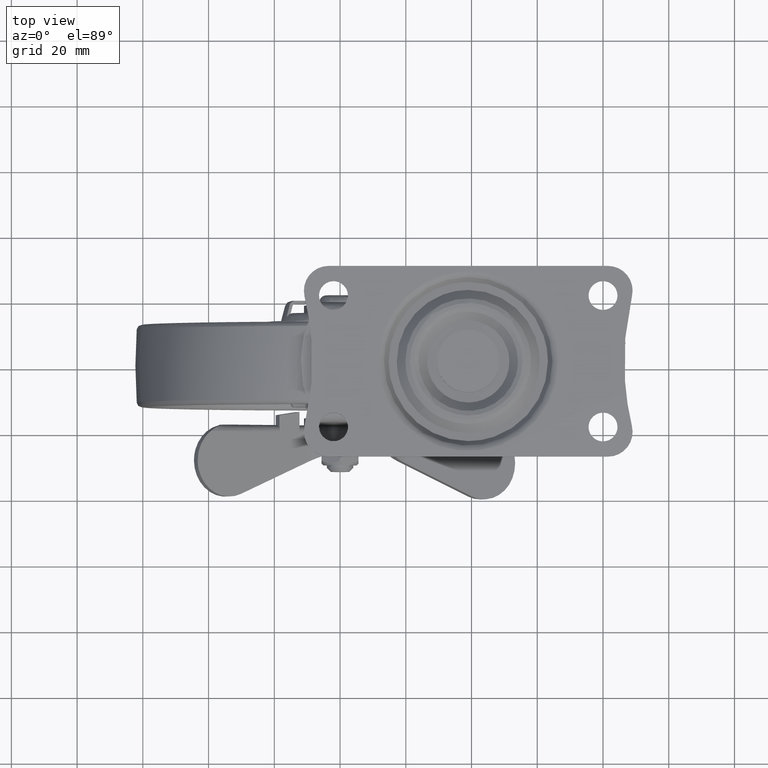
[diagram: clean part render]
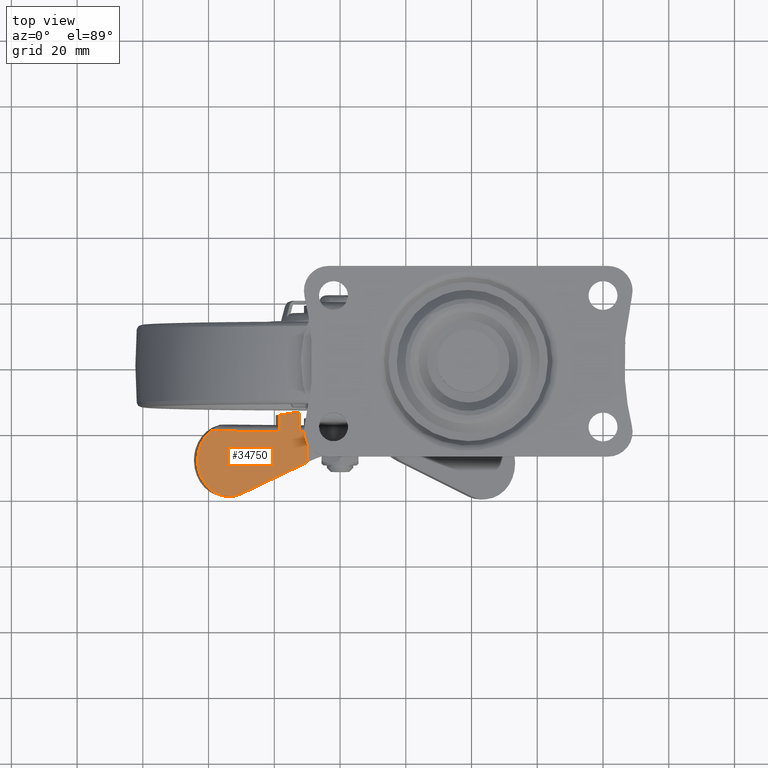
[diagram: same view with one face highlighted and labeled with its STEP entity id]
A machine part, top view. The second image highlights one B-rep face of the part: STEP entity #34750.
In plain terms, the highlighted face is a freeform B-spline surface patch.
Its self-contained STEP definition (entity closure, byte-faithful):
#32930=CARTESIAN_POINT('',(-17.093880880328150,-20.300000000000001,9.949978420978640));
#32931=VERTEX_POINT('',#32930);
#32977=CARTESIAN_POINT('',(-19.999994604697601,-20.300000000000001,9.949980063593381));
#32978=VERTEX_POINT('',#32977);
#32992=CARTESIAN_POINT('',(-17.093880880328150,-20.300000000000001,9.949978420978640));
#32993=CARTESIAN_POINT('',(-19.999994604697601,-20.300000000000001,9.949980063593381));
#32994=QUASI_UNIFORM_CURVE('',1,(#32992,#32993),.UNSPECIFIED.,.F.,.U.);
#32995=EDGE_CURVE('',#32931,#32978,#32994,.T.);
#33097=CARTESIAN_POINT('',(-26.999945601030099,-20.300000000000001,9.949979115491159));
#33098=VERTEX_POINT('',#33097);
#33116=CARTESIAN_POINT('',(-51.097137180938397,-20.300000000000001,9.949980804941218));
#33117=VERTEX_POINT('',#33116);
#33147=CARTESIAN_POINT('',(-26.999945601030099,-20.300000000000001,9.949979115491159));
#33148=CARTESIAN_POINT('',(-51.097137180938397,-20.300000000000001,9.949980804941218));
#33149=QUASI_UNIFORM_CURVE('',1,(#33147,#33148),.UNSPECIFIED.,.F.,.U.);
#33150=EDGE_CURVE('',#33098,#33117,#33149,.T.);
#33259=CARTESIAN_POINT('',(-19.999994604697601,-14.300000000000001,9.949980063593381));
#33260=VERTEX_POINT('',#33259);
#33266=CARTESIAN_POINT('',(-19.999994604697601,-20.300000000000001,9.949980063593381));
#33267=CARTESIAN_POINT('',(-19.999994604697601,-14.300000000000001,9.949980063593381));
#33268=QUASI_UNIFORM_CURVE('',1,(#33266,#33267),.UNSPECIFIED.,.F.,.U.);
#33269=EDGE_CURVE('',#32978,#33260,#33268,.T.);
#33300=CARTESIAN_POINT('',(-26.999945601030049,-15.300000000000001,9.949980063593381));
#33301=VERTEX_POINT('',#33300);
#33302=CARTESIAN_POINT('',(-26.999945601030049,-15.300000000000001,9.949980063593381));
#33303=CARTESIAN_POINT('',(-26.999945601030099,-20.300000000000001,9.949979115491159));
#33304=QUASI_UNIFORM_CURVE('',1,(#33302,#33303),.UNSPECIFIED.,.F.,.U.);
#33305=EDGE_CURVE('',#33301,#33098,#33304,.T.);
#33326=CARTESIAN_POINT('',(-19.999994604697601,-14.300000000000001,9.949980063593381));
#33327=CARTESIAN_POINT('',(-26.999945601030049,-15.300000000000001,9.949980063593381));
#33328=QUASI_UNIFORM_CURVE('',1,(#33326,#33327),.UNSPECIFIED.,.F.,.U.);
#33329=EDGE_CURVE('',#33260,#33301,#33328,.T.);
#33525=CARTESIAN_POINT('',(-55.749953124718601,-29.241503921583249,9.949981131149311));
#33526=VERTEX_POINT('',#33525);
#33527=CARTESIAN_POINT('',(-55.749953124718601,-29.241503921583249,9.949981131149311));
#33528=CARTESIAN_POINT('',(-55.748225295788423,-28.423278233540849,9.949981131028197));
#33529=CARTESIAN_POINT('',(-55.597784512542191,-27.114569748774532,9.949981120480800));
#33530=CARTESIAN_POINT('',(-55.044581133057349,-25.282825457915639,9.949981081695855));
#33531=CARTESIAN_POINT('',(-54.224456500877622,-23.551641733326210,9.949981024197040));
#33532=CARTESIAN_POINT('',(-52.919450848457117,-21.786002471932999,9.949980932703353));
#33533=CARTESIAN_POINT('',(-51.721594293419663,-20.739585625535749,9.949980848721781));
#33534=CARTESIAN_POINT('',(-51.097137180938397,-20.300000000000001,9.949980804941218));
#33535=B_SPLINE_CURVE_WITH_KNOTS('',3,(#33527,#33528,#33529,#33530,#33531,#33532,#33533,#33534),.UNSPECIFIED.,.F.,.U.,(4,1,1,1,1,4),(0.000000117191908,2.454651718497317,3.927449315174578,5.727485918032399,8.182188494564349,10.473190686377871),.UNSPECIFIED.);
#33536=EDGE_CURVE('',#33526,#33117,#33535,.T.);
#33724=CARTESIAN_POINT('',(-55.749953124718601,-29.292369078465651,9.949980362261359));
#33725=VERTEX_POINT('',#33724);
#33750=CARTESIAN_POINT('',(-40.523045019344949,-39.372681740579502,9.949979242286021));
#33751=VERTEX_POINT('',#33750);
#33757=CARTESIAN_POINT('',(-40.523045019344949,-39.372681740579502,9.949979242286021));
#33758=CARTESIAN_POINT('',(-41.299632680137321,-39.700127926101388,9.949979411993963));
#33759=CARTESIAN_POINT('',(-43.145952831839473,-40.238544776442772,9.949979783351569));
#33760=CARTESIAN_POINT('',(-45.927942748536012,-40.300893229584183,9.949980242708303));
#33761=CARTESIAN_POINT('',(-48.236097111728803,-39.738172697560103,9.949980541621400));
#33762=CARTESIAN_POINT('',(-50.141608232057941,-38.897043766165311,9.949980738010851));
#33763=CARTESIAN_POINT('',(-51.932445299927473,-37.711754885222611,9.949980869765579));
#33764=CARTESIAN_POINT('',(-53.485036823884649,-36.063212931428168,9.949980900919123));
#33765=CARTESIAN_POINT('',(-54.733639425876717,-34.052297434552457,9.949980834309526));
#33766=CARTESIAN_POINT('',(-55.542249725855747,-31.876557011512372,9.949980674317118));
#33767=CARTESIAN_POINT('',(-55.748161495321419,-30.135197503402260,9.949980474729834));
#33768=CARTESIAN_POINT('',(-55.749953124718601,-29.292369078465651,9.949980362261359));
#33769=B_SPLINE_CURVE_WITH_KNOTS('',3,(#33757,#33758,#33759,#33760,#33761,#33762,#33763,#33764,#33765,#33766,#33767,#33768),.UNSPECIFIED.,.F.,.U.,(4,1,1,1,1,1,1,1,1,4),(0.000000396818876,2.528460471753217,5.731330391257554,8.259846930633705,9.608479983349326,11.968251004435110,14.665423962371991,16.351122961180820,19.048236582914971,21.576736225990210),.UNSPECIFIED.);
#33770=EDGE_CURVE('',#33751,#33725,#33769,.T.);
#33780=CARTESIAN_POINT('',(-17.093880880328150,-29.496293358925250,9.949978420978439));
#33781=VERTEX_POINT('',#33780);
#33782=CARTESIAN_POINT('',(-17.093880880328150,-29.496293358925250,9.949978420978439));
#33783=CARTESIAN_POINT('',(-40.523045019344949,-39.372681740579502,9.949979242286021));
#33784=QUASI_UNIFORM_CURVE('',1,(#33782,#33783),.UNSPECIFIED.,.F.,.U.);
#33785=EDGE_CURVE('',#33781,#33751,#33784,.T.);
#34720=CARTESIAN_POINT('',(-17.093880880328150,-20.300000000000001,9.949978420978640));
#34721=CARTESIAN_POINT('',(-17.093880880328150,-29.496293358925250,9.949978420978439));
#34722=QUASI_UNIFORM_CURVE('',1,(#34720,#34721),.UNSPECIFIED.,.F.,.U.);
#34723=EDGE_CURVE('',#32931,#33781,#34722,.T.);
#34729=CARTESIAN_POINT('',(-15.163010872394921,-41.528887982740059,9.949978285605670));
#34730=CARTESIAN_POINT('',(-57.680824860712917,-41.528887982740059,9.949981266522427));
#34731=CARTESIAN_POINT('',(-15.163010872394921,-13.004620567822620,9.949978285605670));
#34732=CARTESIAN_POINT('',(-57.680824860712917,-13.004620567822620,9.949981266522427));
#34733=B_SPLINE_SURFACE_WITH_KNOTS('',1,1,((#34729,#34731),(#34730,#34732)),.UNSPECIFIED.,.F.,.F.,.U.,(2,2),(2,2),(0.0,42.517813988318117),(0.0,28.524267414917439),.UNSPECIFIED.);
#34734=ORIENTED_EDGE('',*,*,#34723,.F.);
#34735=ORIENTED_EDGE('',*,*,#32995,.T.);
#34736=ORIENTED_EDGE('',*,*,#33269,.T.);
#34737=ORIENTED_EDGE('',*,*,#33329,.T.);
#34738=ORIENTED_EDGE('',*,*,#33305,.T.);
#34739=ORIENTED_EDGE('',*,*,#33150,.T.);
#34740=ORIENTED_EDGE('',*,*,#33536,.F.);
#34741=CARTESIAN_POINT('',(-55.749953124718601,-29.241503921583249,9.949981131149311));
#34742=CARTESIAN_POINT('',(-55.749953124718601,-29.292369078465651,9.949980362261359));
#34743=QUASI_UNIFORM_CURVE('',1,(#34741,#34742),.UNSPECIFIED.,.F.,.U.);
#34744=EDGE_CURVE('',#33526,#33725,#34743,.T.);
#34745=ORIENTED_EDGE('',*,*,#34744,.T.);
#34746=ORIENTED_EDGE('',*,*,#33770,.F.);
#34747=ORIENTED_EDGE('',*,*,#33785,.F.);
#34748=EDGE_LOOP('',(#34734,#34735,#34736,#34737,#34738,#34739,#34740,#34745,#34746,#34747));
#34749=FACE_OUTER_BOUND('',#34748,.T.);
#34750=ADVANCED_FACE('',(#34749),#34733,.F.);